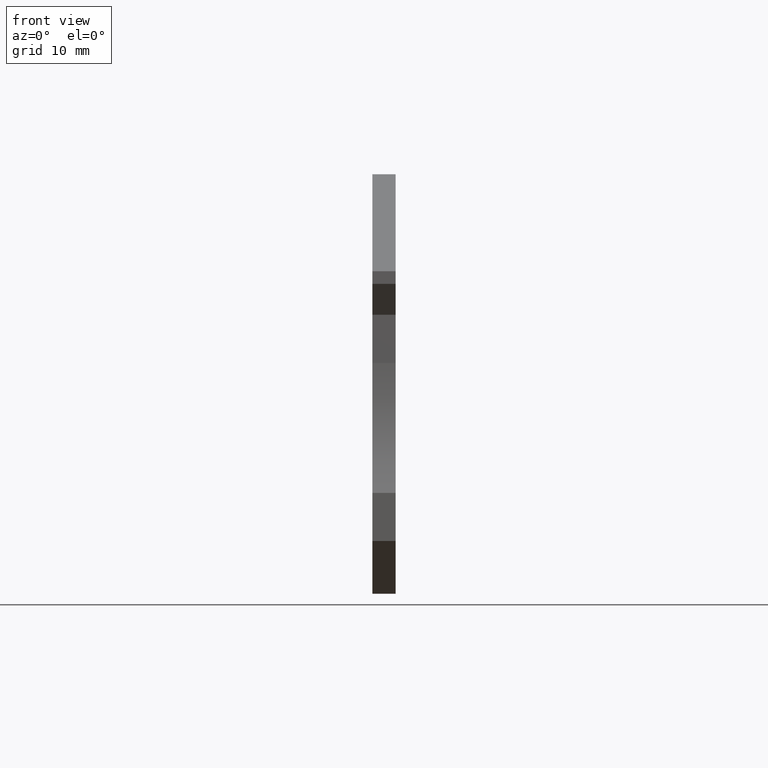
[diagram: clean part render]
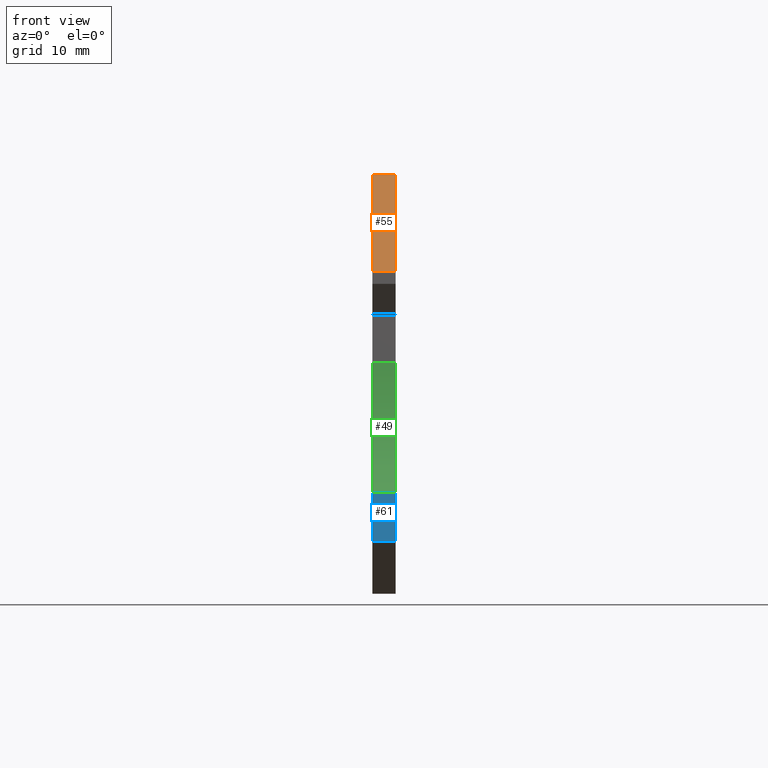
[diagram: same view with three faces highlighted in distinct colors, each labeled with its STEP entity id]
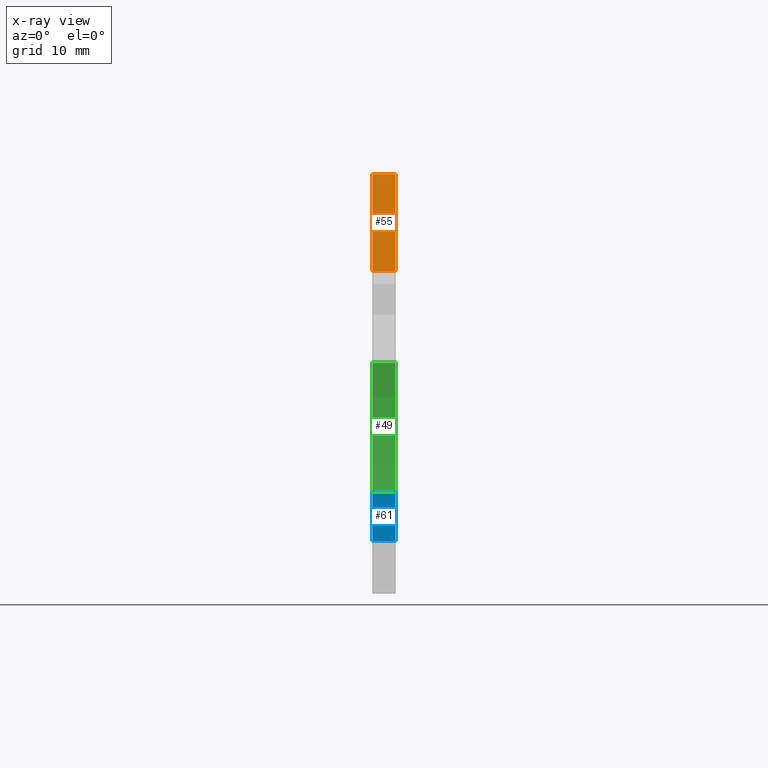
[diagram: x-ray of the same camera — body ghosted, the three highlighted faces saturated]
A machine part, front view with three faces highlighted in distinct colors.
The next image is the same camera in x-ray (body ghosted, the three faces saturated) — at least one of them is partly hidden behind the body in this view.
Their STEP definitions:

[orange] entity #55 — the highlighted planar face has unit normal (-0, -0.7071, 0.7071).
#55=ADVANCED_FACE('',(#115),#116,.T.);
#115=FACE_OUTER_BOUND('',#177,.T.);
#116=PLANE('',#178);
#177=EDGE_LOOP('',(#275,#276,#277,#278));
#178=AXIS2_PLACEMENT_3D('',#279,#280,#281);
#275=ORIENTED_EDGE('',*,*,#417,.T.);
#276=ORIENTED_EDGE('',*,*,#389,.T.);
#277=ORIENTED_EDGE('',*,*,#419,.F.);
#278=ORIENTED_EDGE('',*,*,#420,.T.);
#279=CARTESIAN_POINT('',(1.09999999999996,10.4000000000012,39.8000000000021));
#280=DIRECTION('',(-7.47100079156643E-015,-0.707106781186637,0.707106781186458));
#281=DIRECTION('',(1.0,-1.11631705655199E-028,1.05655906439346E-014));
#389=EDGE_CURVE('',#462,#460,#463,.T.);
#417=EDGE_CURVE('',#506,#462,#508,.T.);
#419=EDGE_CURVE('',#510,#460,#511,.T.);
#420=EDGE_CURVE('',#510,#506,#512,.T.);
#460=VERTEX_POINT('',#562);
#462=VERTEX_POINT('',#565);
#463=LINE('',#566,#567);
#506=VERTEX_POINT('',#629);
#508=LINE('',#632,#633);
#510=VERTEX_POINT('',#635);
#511=LINE('',#636,#637);
#512=LINE('',#638,#639);
#562=CARTESIAN_POINT('',(-2.86682059164337E-016,1.19999999999934,30.599999999998));
#565=CARTESIAN_POINT('',(-2.52435489670724E-029,10.4000000000012,39.8000000000021));
#566=CARTESIAN_POINT('',(3.73408332937063E-014,28.8500000000016,58.2500000000071));
#567=VECTOR('',#699,1.0);
#629=CARTESIAN_POINT('',(2.19999999999996,10.4000000000012,39.8000000000021));
#632=CARTESIAN_POINT('',(-4.42295480701459E-014,10.4000000000012,39.8000000000021));
#633=VECTOR('',#726,1.0);
#635=CARTESIAN_POINT('',(2.20000000000006,1.19999999999934,30.599999999998));
#636=CARTESIAN_POINT('',(5.29738858540947E-014,1.19999999999934,30.599999999998));
#637=VECTOR('',#727,1.0);
#638=CARTESIAN_POINT('',(2.20000000000013,-5.03612699999033,24.3638730000067));
#639=VECTOR('',#728,1.0);
#699=DIRECTION('',(3.25065265796183E-017,-0.707106781186458,-0.707106781186637));
#726=DIRECTION('',(-1.0,1.05655906439322E-014,1.12018248541384E-028));
#727=DIRECTION('',(-1.0,1.11631705655199E-028,-1.05655906439346E-014));
#728=DIRECTION('',(-7.47100079156816E-015,0.707106781186458,0.707106781186637));

[blue] entity #61 — the highlighted planar face has unit normal (0, 1, 0).
#61=ADVANCED_FACE('',(#124),#125,.F.);
#124=FACE_OUTER_BOUND('',#186,.T.);
#125=PLANE('',#187);
#186=EDGE_LOOP('',(#299,#300,#301,#302));
#187=AXIS2_PLACEMENT_3D('',#303,#304,#305);
#299=ORIENTED_EDGE('',*,*,#428,.F.);
#300=ORIENTED_EDGE('',*,*,#409,.F.);
#301=ORIENTED_EDGE('',*,*,#384,.F.);
#302=ORIENTED_EDGE('',*,*,#405,.T.);
#303=CARTESIAN_POINT('',(-2.20000239999972,-1.77635683940025E-014,8.80658585545214));
#304=DIRECTION('',(2.93254050041516E-031,1.0,1.0537835068319E-014));
#305=DIRECTION('',(1.0,-1.11631705655198E-028,1.05655906439346E-014));
#384=EDGE_CURVE('',#451,#452,#453,.T.);
#405=EDGE_CURVE('',#451,#490,#491,.T.);
#409=EDGE_CURVE('',#452,#496,#497,.T.);
#428=EDGE_CURVE('',#496,#490,#522,.T.);
#451=VERTEX_POINT('',#550);
#452=VERTEX_POINT('',#551);
#453=LINE('',#552,#553);
#490=VERTEX_POINT('',#606);
#491=LINE('',#607,#608);
#496=VERTEX_POINT('',#615);
#497=LINE('',#616,#617);
#522=LINE('',#653,#654);
#550=CARTESIAN_POINT('',(-2.52435489670724E-028,2.22044604925031E-014,5.00803263805066));
#551=CARTESIAN_POINT('',(-3.53409685539013E-028,-2.57571741713036E-014,9.57370696437977));
#552=CARTESIAN_POINT('',(-3.02922587604869E-028,-1.82076576038526E-013,24.3638730000068));
#553=VECTOR('',#692,1.0);
#606=CARTESIAN_POINT('',(2.20000000000033,2.22044604925031E-014,5.00803263805069));
#607=CARTESIAN_POINT('',(3.23368136773365E-013,2.22044604925031E-014,5.00803263805066));
#608=VECTOR('',#715,1.0);
#615=CARTESIAN_POINT('',(2.20000000000028,-2.57571741713036E-014,9.57370696437979));
#616=CARTESIAN_POINT('',(2.20000000000028,-2.57571741713036E-014,9.57370696437979));
#617=VECTOR('',#718,1.0);
#653=CARTESIAN_POINT('',(2.20000000000013,-1.82076576038526E-013,24.3638730000068));
#654=VECTOR('',#733,1.0);
#692=DIRECTION('',(0.0,-1.0537835068319E-014,1.0));
#715=DIRECTION('',(1.0,-1.11631705655199E-028,1.05655906439346E-014));
#718=DIRECTION('',(1.0,-1.11631705655199E-028,1.05655906439346E-014));
#733=DIRECTION('',(1.05655906439346E-014,1.0537835068319E-014,-1.0));

[green] entity #49 — the highlighted cylindrical surface (partial cylindrical patch) has radius 25 mm, axis along (-1, 0, -0).
#49=ADVANCED_FACE('',(#106),#107,.F.);
#106=FACE_OUTER_BOUND('',#168,.T.);
#107=CYLINDRICAL_SURFACE('',#169,25.0);
#168=EDGE_LOOP('',(#251,#252,#253,#254));
#169=AXIS2_PLACEMENT_3D('',#255,#256,#257);
#251=ORIENTED_EDGE('',*,*,#409,.T.);
#252=ORIENTED_EDGE('',*,*,#410,.T.);
#253=ORIENTED_EDGE('',*,*,#411,.T.);
#254=ORIENTED_EDGE('',*,*,#385,.F.);
#255=CARTESIAN_POINT('',(2.20000000000015,-21.7500000000005,21.8999999999999));
#256=DIRECTION('',(-1.0,1.11631705655199E-028,-1.05655906439346E-014));
#257=DIRECTION('',(6.02670443536817E-043,1.0,1.05655906439346E-014));
#385=EDGE_CURVE('',#452,#454,#455,.T.);
#409=EDGE_CURVE('',#452,#496,#497,.T.);
#410=EDGE_CURVE('',#496,#498,#499,.T.);
#411=EDGE_CURVE('',#498,#454,#500,.T.);
#452=VERTEX_POINT('',#551);
#454=VERTEX_POINT('',#554);
#455=CIRCLE('',#555,25.0);
#496=VERTEX_POINT('',#615);
#497=LINE('',#616,#617);
#498=VERTEX_POINT('',#618);
#499=CIRCLE('',#619,25.0);
#500=LINE('',#620,#621);
#551=CARTESIAN_POINT('',(-3.53409685539013E-028,-2.57571741713036E-014,9.57370696437977));
#554=CARTESIAN_POINT('',(1.21442045182528E-016,3.24999999999943,21.9000000000002));
#555=AXIS2_PLACEMENT_3D('',#693,#694,#695);
#615=CARTESIAN_POINT('',(2.20000000000028,-2.57571741713036E-014,9.57370696437979));
#616=CARTESIAN_POINT('',(2.20000000000028,-2.57571741713036E-014,9.57370696437979));
#617=VECTOR('',#718,1.0);
#618=CARTESIAN_POINT('',(2.20000000000015,3.24999999999943,21.9000000000002));
#619=AXIS2_PLACEMENT_3D('',#719,#720,#721);
#620=CARTESIAN_POINT('',(1.10000000000015,3.24999999999943,21.9000000000002));
#621=VECTOR('',#722,1.0);
#693=CARTESIAN_POINT('',(3.74249356725875E-014,-21.7500000000005,21.8999999999999));
#694=DIRECTION('',(1.0,-1.11631705655199E-028,1.05655906439346E-014));
#695=DIRECTION('',(6.02670443536817E-043,1.0,1.05655906439346E-014));
#718=DIRECTION('',(1.0,-1.11631705655199E-028,1.05655906439346E-014));
#719=CARTESIAN_POINT('',(2.20000000000015,-21.7500000000005,21.8999999999999));
#720=DIRECTION('',(1.0,-1.11631705655199E-028,1.05655906439346E-014));
#721=DIRECTION('',(6.02670443536817E-043,1.0,1.05655906439346E-014));
#722=DIRECTION('',(-1.0,1.11631705655199E-028,-1.05655906439346E-014));